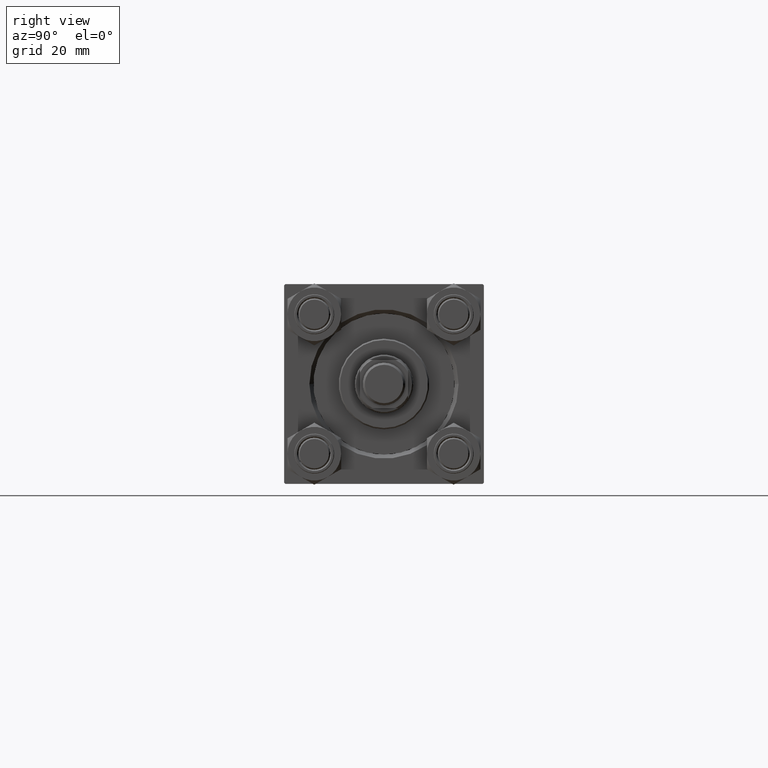
[diagram: clean part render]
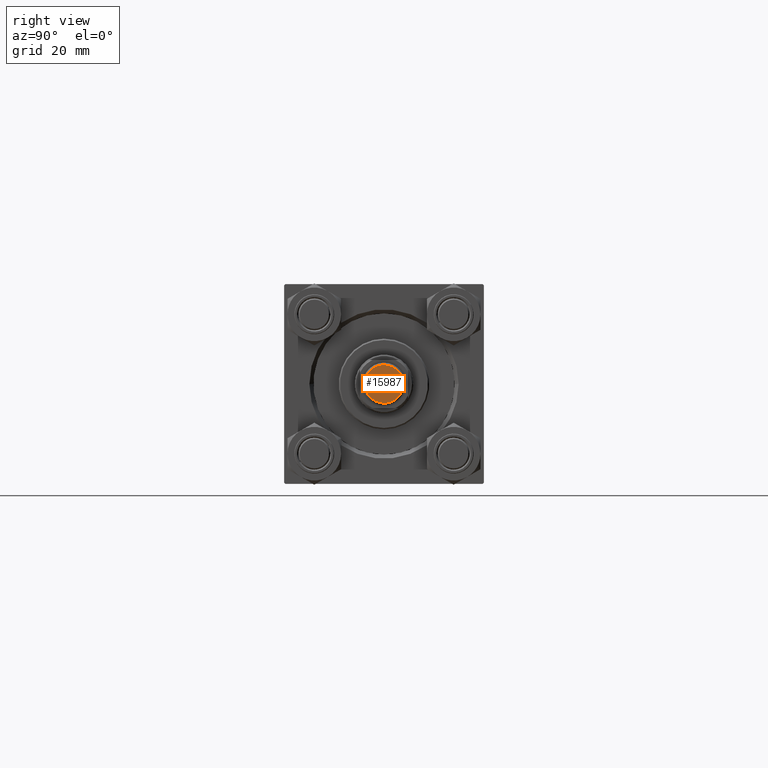
[diagram: same view with one face highlighted and labeled with its STEP entity id]
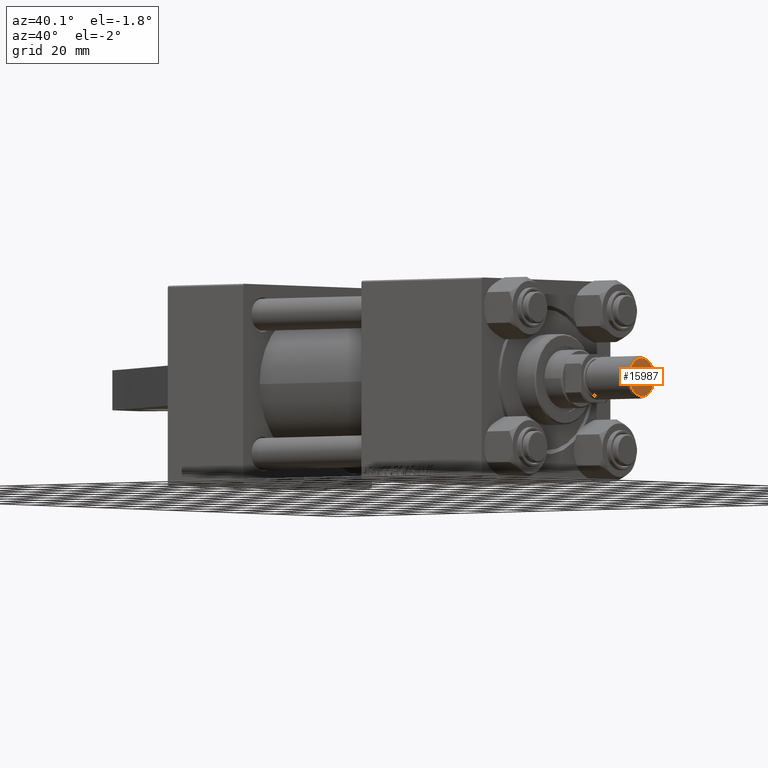
[diagram: same view with one face highlighted and labeled with its STEP entity id]
A machine part, right view. The second image highlights one B-rep face of the part: STEP entity #15987.
A second angle (auxiliary view) of the same face is appended — the face is thin or edge-on in the first view.
In plain terms, the highlighted planar face has unit normal (-1, -0, 0).
Its self-contained STEP definition (entity closure, byte-faithful):
#740 = DIRECTION ( 'NONE',  ( 1.000000000000000000, 0.000000000000000000, 0.000000000000000000 ) ) ;
#1320 = CARTESIAN_POINT ( 'NONE',  ( 0.000000000000000000, 0.000000000000000000, 0.000000000000000000 ) ) ;
#1772 = VERTEX_POINT ( 'NONE', #36776 ) ;
#1970 = EDGE_CURVE ( 'NONE', #1772, #8854, #13765, .T. ) ;
#8854 = VERTEX_POINT ( 'NONE', #41415 ) ;
#9820 = DIRECTION ( 'NONE',  ( 0.000000000000000000, 0.000000000000000000, 1.000000000000000000 ) ) ;
#11446 = CIRCLE ( 'NONE', #21959, 7.199999999999987743 ) ;
#11782 = CARTESIAN_POINT ( 'NONE',  ( 0.000000000000000000, 0.000000000000000000, 0.000000000000000000 ) ) ;
#12249 = AXIS2_PLACEMENT_3D ( 'NONE', #11782, #22829, #740 ) ;
#13765 = CIRCLE ( 'NONE', #12249, 7.199999999999987743 ) ;
#14677 = ORIENTED_EDGE ( 'NONE', *, *, #45809, .T. ) ;
#15987 = ADVANCED_FACE ( 'NONE', ( #30062 ), #24406, .F. ) ;
#16125 = DIRECTION ( 'NONE',  ( -0.000000000000000000, -0.000000000000000000, -1.000000000000000000 ) ) ;
#17984 = ORIENTED_EDGE ( 'NONE', *, *, #1970, .T. ) ;
#19181 = DIRECTION ( 'NONE',  ( 1.000000000000000000, 0.000000000000000000, 0.000000000000000000 ) ) ;
#21959 = AXIS2_PLACEMENT_3D ( 'NONE', #1320, #16125, #19181 ) ;
#22829 = DIRECTION ( 'NONE',  ( -0.000000000000000000, -0.000000000000000000, -1.000000000000000000 ) ) ;
#24169 = DIRECTION ( 'NONE',  ( 1.000000000000000000, 0.000000000000000000, -0.000000000000000000 ) ) ;
#24406 = PLANE ( 'NONE',  #44143 ) ;
#30062 = FACE_OUTER_BOUND ( 'NONE', #43610, .T. ) ;
#36776 = CARTESIAN_POINT ( 'NONE',  ( 7.199999999999987743, 0.000000000000000000, 0.000000000000000000 ) ) ;
#41415 = CARTESIAN_POINT ( 'NONE',  ( -7.199999999999987743, 9.307315673519877571E-16, 0.000000000000000000 ) ) ;
#43610 = EDGE_LOOP ( 'NONE', ( #17984, #14677 ) ) ;
#44143 = AXIS2_PLACEMENT_3D ( 'NONE', #45340, #9820, #24169 ) ;
#45340 = CARTESIAN_POINT ( 'NONE',  ( 0.000000000000000000, 0.000000000000000000, 0.000000000000000000 ) ) ;
#45809 = EDGE_CURVE ( 'NONE', #8854, #1772, #11446, .T. ) ;